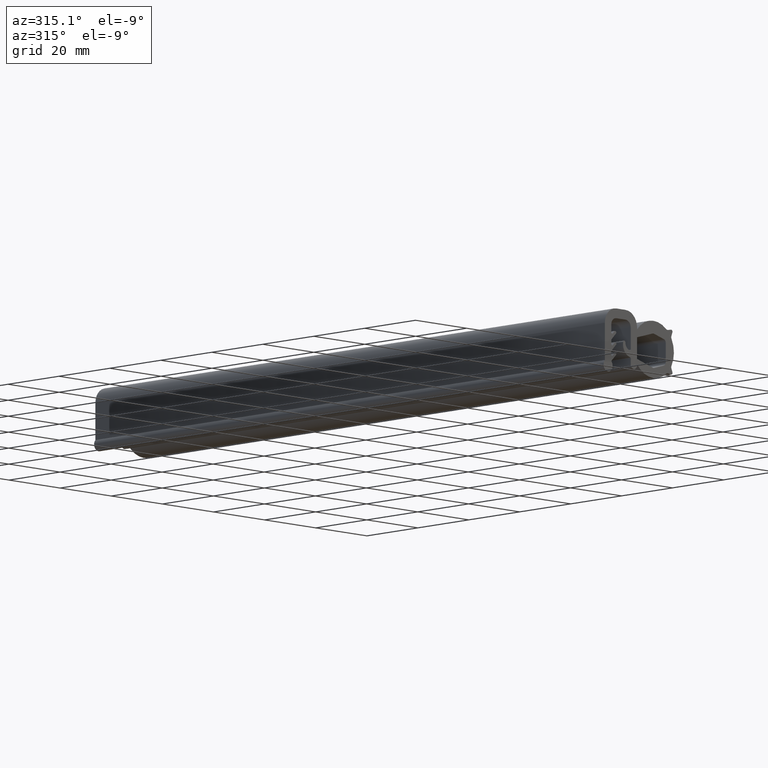
[diagram: clean part render]
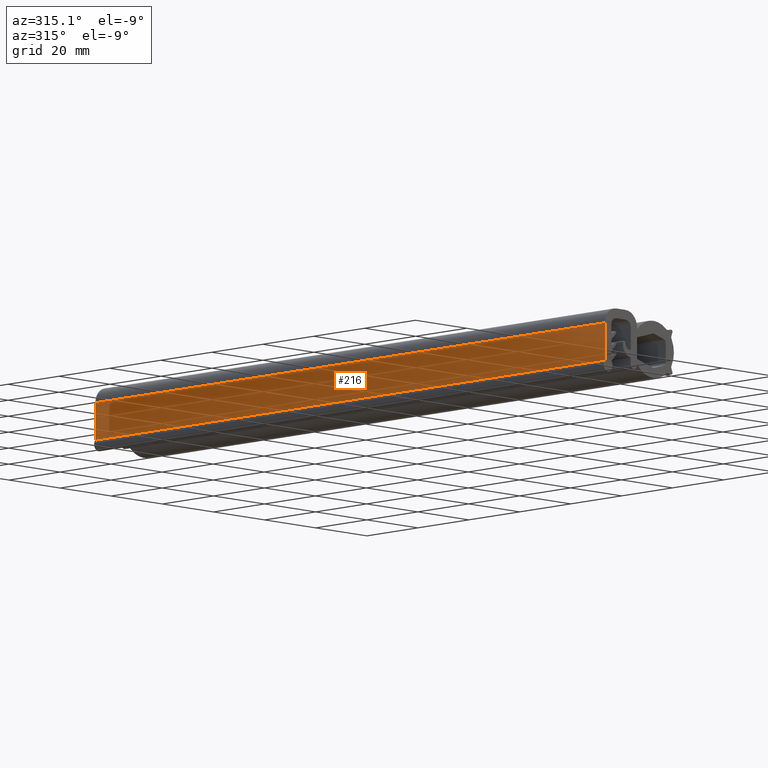
[diagram: same view with one face highlighted and labeled with its STEP entity id]
A machine part, auxiliary view. The second image highlights one B-rep face of the part: STEP entity #216.
In plain terms, the highlighted planar face has unit normal (-1, 0, 0).
Its self-contained STEP definition (entity closure, byte-faithful):
#216=ADVANCED_FACE('',(#913),#912,.T.);
#912=PLANE('',#1492);
#913=FACE_OUTER_BOUND('',#1493,.T.);
#1489=CARTESIAN_POINT('',(-6.10000000000E+00,-1.00000000000E+01,1.96954364826E+00));
#1490=DIRECTION('',(-1.00000000000E+00,0.00000000000E+00,0.00000000000E+00));
#1491=DIRECTION('',(0.00000000000E+00,0.00000000000E+00,1.00000000000E+00));
#1492=AXIS2_PLACEMENT_3D('',#1489,#1490,#1491);
#1493=EDGE_LOOP('',(#2007,#2008,#2009,#2010));
#2007=ORIENTED_EDGE('',*,*,#2263,.F.);
#2008=ORIENTED_EDGE('',*,*,#2331,.F.);
#2009=ORIENTED_EDGE('',*,*,#2251,.T.);
#2010=ORIENTED_EDGE('',*,*,#2330,.T.);
#2251=EDGE_CURVE('',#3266,#3259,#3267,.T.);
#2263=EDGE_CURVE('',#3341,#3348,#3349,.T.);
#2330=EDGE_CURVE('',#3259,#3348,#3786,.T.);
#2331=EDGE_CURVE('',#3266,#3341,#3792,.T.);
#3259=VERTEX_POINT('',#4614);
#3266=VERTEX_POINT('',#4619);
#3267=LINE('',#4620,#4621);
#3341=VERTEX_POINT('',#4665);
#3348=VERTEX_POINT('',#4670);
#3349=LINE('',#4671,#4672);
#3786=LINE('',#4925,#4926);
#3792=LINE('',#4928,#4929);
#4614=CARTESIAN_POINT('',(-6.10000000000E+00,2.00000000000E+02,3.01776695297E+00));
#4619=CARTESIAN_POINT('',(-6.10000000000E+00,2.00000000000E+02,1.35000000000E+01));
#4620=CARTESIAN_POINT('',(-6.10000000000E+00,2.00000000000E+02,1.35000000000E+01));
#4621=VECTOR('',#4622,1.04822330470E+01);
#4622=DIRECTION('',(0.00000000000E+00,0.00000000000E+00,-1.00000000000E+00));
#4665=CARTESIAN_POINT('',(-6.10000000000E+00,0.00000000000E+00,1.35000000000E+01));
#4670=CARTESIAN_POINT('',(-6.10000000000E+00,0.00000000000E+00,3.01776695297E+00));
#4671=CARTESIAN_POINT('',(-6.10000000000E+00,0.00000000000E+00,1.35000000000E+01));
#4672=VECTOR('',#4673,1.04822330470E+01);
#4673=DIRECTION('',(0.00000000000E+00,0.00000000000E+00,-1.00000000000E+00));
#4925=CARTESIAN_POINT('',(-6.10000000000E+00,2.00000000000E+02,3.01776695297E+00));
#4926=VECTOR('',#4927,2.00000000000E+02);
#4927=DIRECTION('',(0.00000000000E+00,-1.00000000000E+00,0.00000000000E+00));
#4928=CARTESIAN_POINT('',(-6.10000000000E+00,2.00000000000E+02,1.35000000000E+01));
#4929=VECTOR('',#4930,2.00000000000E+02);
#4930=DIRECTION('',(0.00000000000E+00,-1.00000000000E+00,0.00000000000E+00));